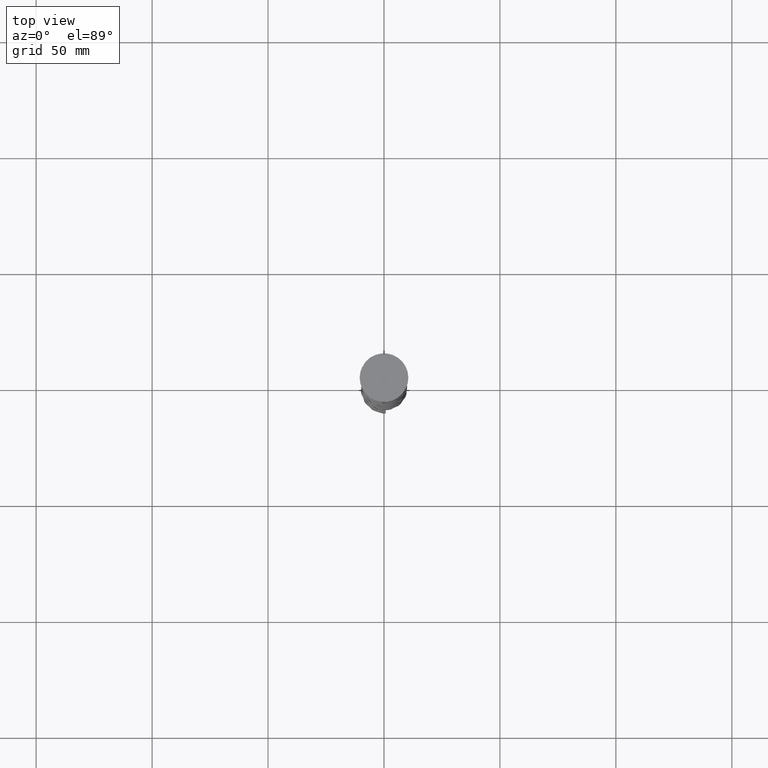
[diagram: clean part render]
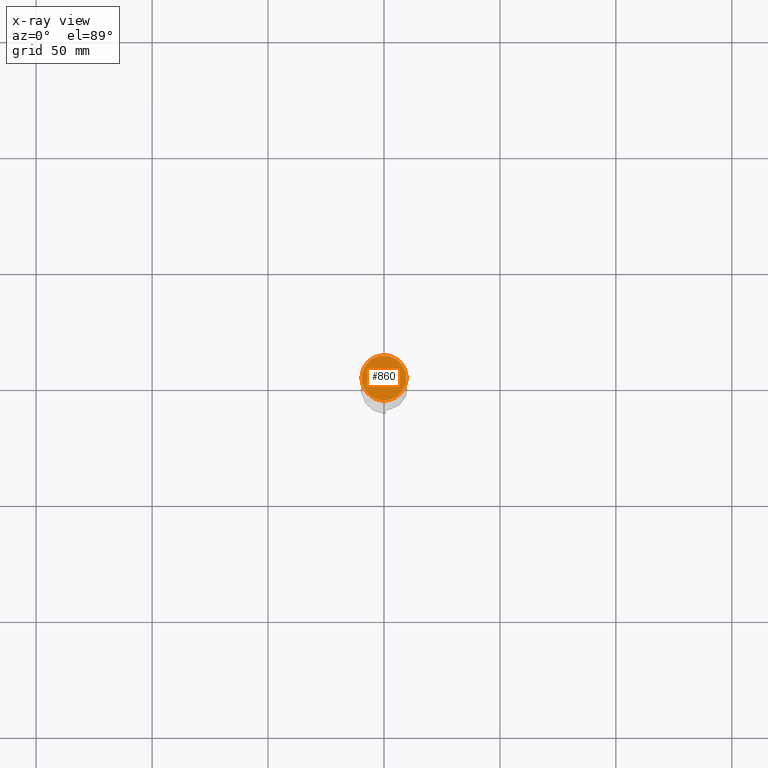
[diagram: x-ray — body ghosted, one internal face saturated and labeled with its STEP entity id]
A machine part, top view, then the same camera in x-ray: the body is ghosted and one INTERNAL B-rep face — a face not visible from any outside direction — is saturated and labeled: STEP entity #860.
In plain terms, the highlighted planar face has unit normal (0, 0, -1).
Its self-contained STEP definition (entity closure, byte-faithful):
#12 = CARTESIAN_POINT ( 'NONE',  ( 0.000000000000000000, 0.000000000000000000, -12.00000000000000000 ) ) ;
#426 = EDGE_LOOP ( 'NONE', ( #2633, #4127 ) ) ;
#435 = CARTESIAN_POINT ( 'NONE',  ( 0.000000000000000000, 0.000000000000000000, -12.00000000000000000 ) ) ;
#453 = DIRECTION ( 'NONE',  ( -1.000000000000000000, 0.000000000000000000, -0.000000000000000000 ) ) ;
#463 = AXIS2_PLACEMENT_3D ( 'NONE', #12, #3092, #453 ) ;
#860 = ADVANCED_FACE ( 'NONE', ( #4004 ), #2494, .F. ) ;
#881 = CIRCLE ( 'NONE', #3233, 9.700000000000002842 ) ;
#1408 = DIRECTION ( 'NONE',  ( -1.000000000000000000, 0.000000000000000000, 0.000000000000000000 ) ) ;
#1421 = EDGE_CURVE ( 'NONE', #3845, #2981, #881, .T. ) ;
#1515 = DIRECTION ( 'NONE',  ( -0.000000000000000000, -0.000000000000000000, 1.000000000000000000 ) ) ;
#2206 = CIRCLE ( 'NONE', #3316, 9.700000000000002842 ) ;
#2342 = CARTESIAN_POINT ( 'NONE',  ( 9.700000000000002842, 1.206277097160143024E-15, -12.00000000000000000 ) ) ;
#2494 = PLANE ( 'NONE',  #463 ) ;
#2497 = DIRECTION ( 'NONE',  ( -1.000000000000000000, 0.000000000000000000, 0.000000000000000000 ) ) ;
#2633 = ORIENTED_EDGE ( 'NONE', *, *, #4251, .T. ) ;
#2838 = CARTESIAN_POINT ( 'NONE',  ( 0.000000000000000000, 0.000000000000000000, -12.00000000000000000 ) ) ;
#2981 = VERTEX_POINT ( 'NONE', #3239 ) ;
#3092 = DIRECTION ( 'NONE',  ( 0.000000000000000000, 0.000000000000000000, -1.000000000000000000 ) ) ;
#3233 = AXIS2_PLACEMENT_3D ( 'NONE', #2838, #1515, #2497 ) ;
#3239 = CARTESIAN_POINT ( 'NONE',  ( -9.700000000000002842, 0.000000000000000000, -12.00000000000000000 ) ) ;
#3316 = AXIS2_PLACEMENT_3D ( 'NONE', #435, #3450, #1408 ) ;
#3450 = DIRECTION ( 'NONE',  ( -0.000000000000000000, -0.000000000000000000, 1.000000000000000000 ) ) ;
#3845 = VERTEX_POINT ( 'NONE', #2342 ) ;
#4004 = FACE_OUTER_BOUND ( 'NONE', #426, .T. ) ;
#4127 = ORIENTED_EDGE ( 'NONE', *, *, #1421, .T. ) ;
#4251 = EDGE_CURVE ( 'NONE', #2981, #3845, #2206, .T. ) ;